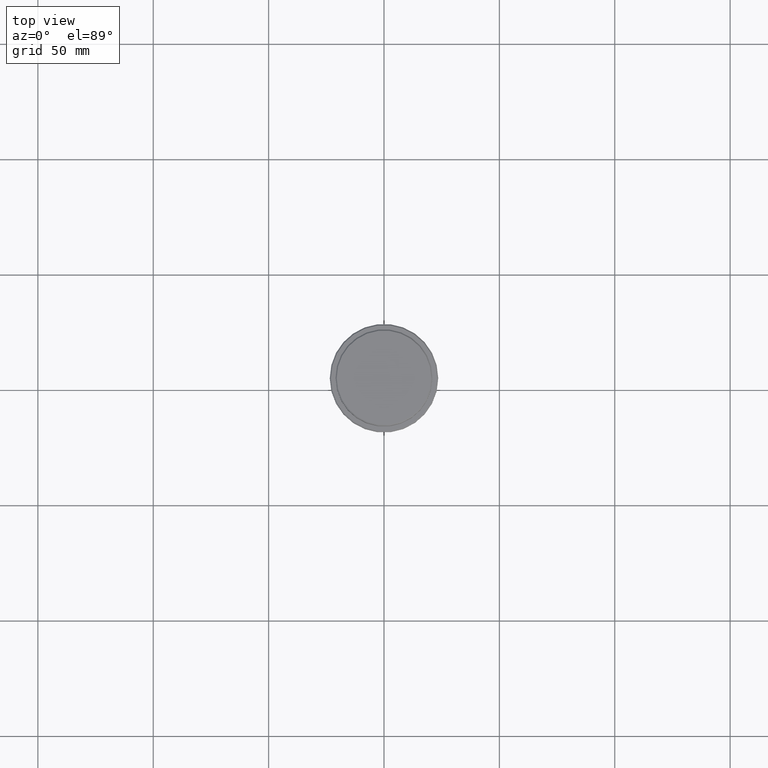
[diagram: clean part render]
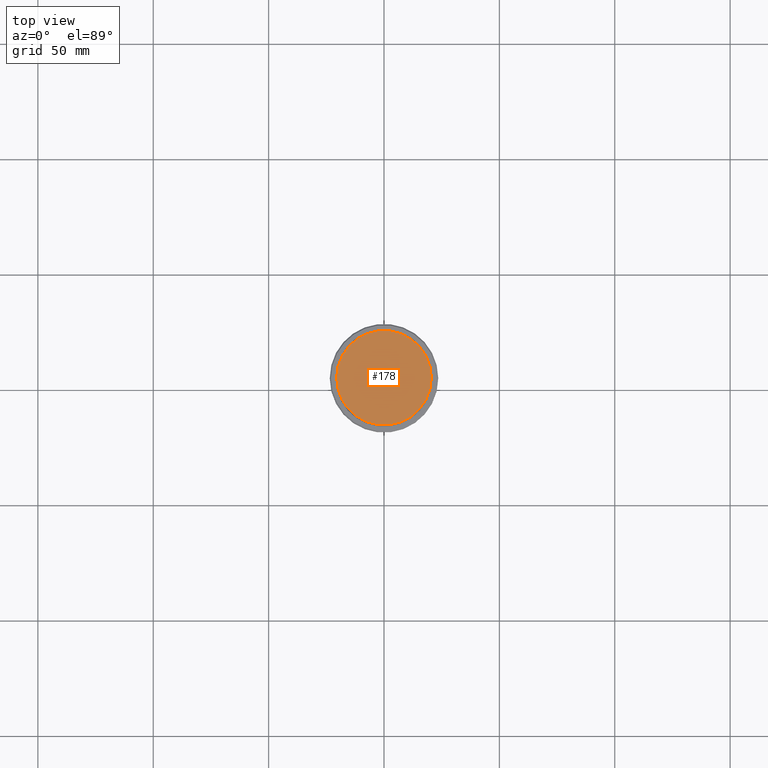
[diagram: same view with one face highlighted and labeled with its STEP entity id]
A machine part, top view. The second image highlights one B-rep face of the part: STEP entity #178.
In plain terms, the highlighted planar face has unit normal (0, -0, 1).
Its self-contained STEP definition (entity closure, byte-faithful):
#6 = DIRECTION ( 'NONE',  ( 1.000000000000000000, 0.000000000000000000, 0.000000000000000000 ) ) ;
#178 = ADVANCED_FACE ( 'NONE', ( #1239 ), #1018, .T. ) ;
#231 = AXIS2_PLACEMENT_3D ( 'NONE', #820, #1251, #716 ) ;
#236 = DIRECTION ( 'NONE',  ( -0.000000000000000000, -0.000000000000000000, 1.000000000000000000 ) ) ;
#243 = CARTESIAN_POINT ( 'NONE',  ( -20.50000000000004619, 0.000000000000000000, 0.000000000000000000 ) ) ;
#253 = CARTESIAN_POINT ( 'NONE',  ( 0.000000000000000000, 0.000000000000000000, 0.000000000000000000 ) ) ;
#313 = VERTEX_POINT ( 'NONE', #1155 ) ;
#456 = AXIS2_PLACEMENT_3D ( 'NONE', #253, #474, #593 ) ;
#474 = DIRECTION ( 'NONE',  ( 0.000000000000000000, -0.000000000000000000, 1.000000000000000000 ) ) ;
#476 = ORIENTED_EDGE ( 'NONE', *, *, #537, .T. ) ;
#483 = AXIS2_PLACEMENT_3D ( 'NONE', #991, #236, #6 ) ;
#537 = EDGE_CURVE ( 'NONE', #1307, #313, #573, .T. ) ;
#573 = CIRCLE ( 'NONE', #483, 20.50000000000004619 ) ;
#593 = DIRECTION ( 'NONE',  ( 1.000000000000000000, 0.000000000000000000, 0.000000000000000000 ) ) ;
#689 = ORIENTED_EDGE ( 'NONE', *, *, #1362, .T. ) ;
#716 = DIRECTION ( 'NONE',  ( 1.000000000000000000, 0.000000000000000000, 0.000000000000000000 ) ) ;
#820 = CARTESIAN_POINT ( 'NONE',  ( 0.000000000000000000, 0.000000000000000000, 0.000000000000000000 ) ) ;
#991 = CARTESIAN_POINT ( 'NONE',  ( 0.000000000000000000, 0.000000000000000000, 0.000000000000000000 ) ) ;
#1018 = PLANE ( 'NONE',  #456 ) ;
#1155 = CARTESIAN_POINT ( 'NONE',  ( 20.50000000000004619, 2.541142108230760635E-15, 0.000000000000000000 ) ) ;
#1239 = FACE_OUTER_BOUND ( 'NONE', #1357, .T. ) ;
#1251 = DIRECTION ( 'NONE',  ( -0.000000000000000000, -0.000000000000000000, 1.000000000000000000 ) ) ;
#1307 = VERTEX_POINT ( 'NONE', #243 ) ;
#1357 = EDGE_LOOP ( 'NONE', ( #476, #689 ) ) ;
#1362 = EDGE_CURVE ( 'NONE', #313, #1307, #1394, .T. ) ;
#1394 = CIRCLE ( 'NONE', #231, 20.50000000000004619 ) ;